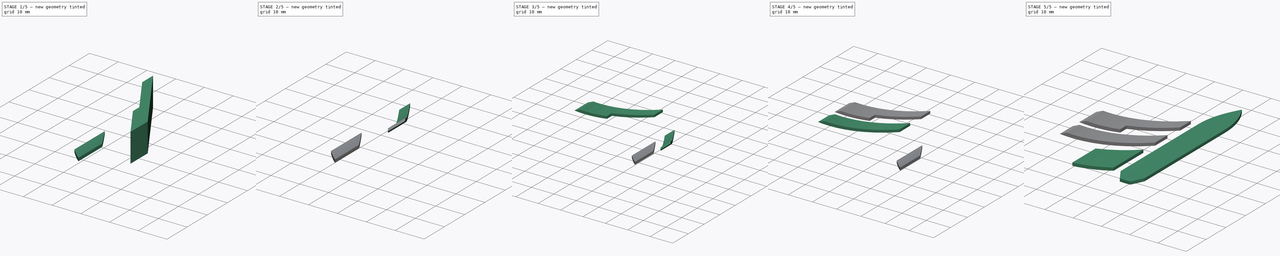
[diagram: build sequence overview — one tinted view per stage of 5, left to right]
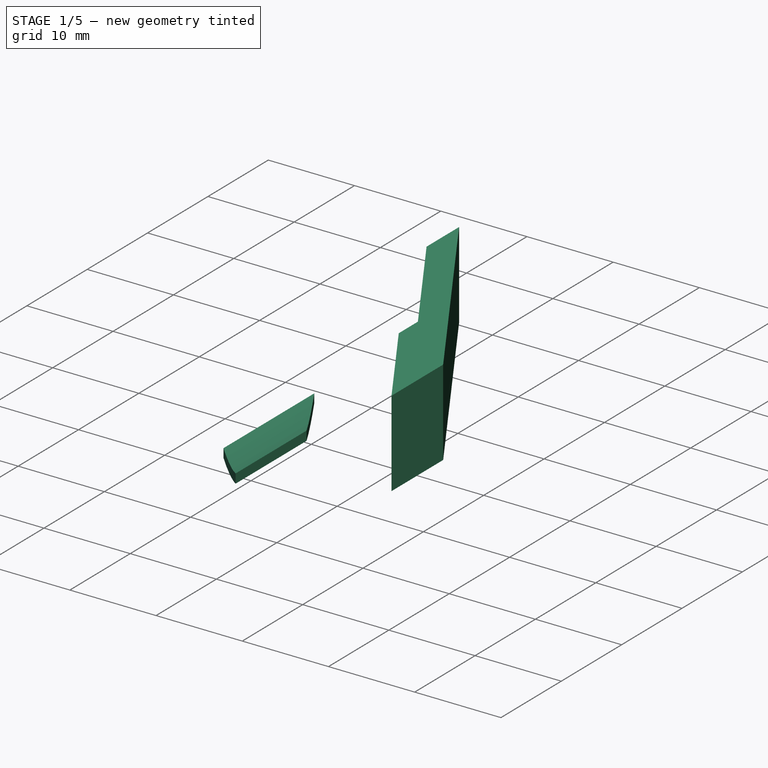
[diagram: stage 1 of 5 — iso view after this stage's code; geometry added in this stage tinted green]
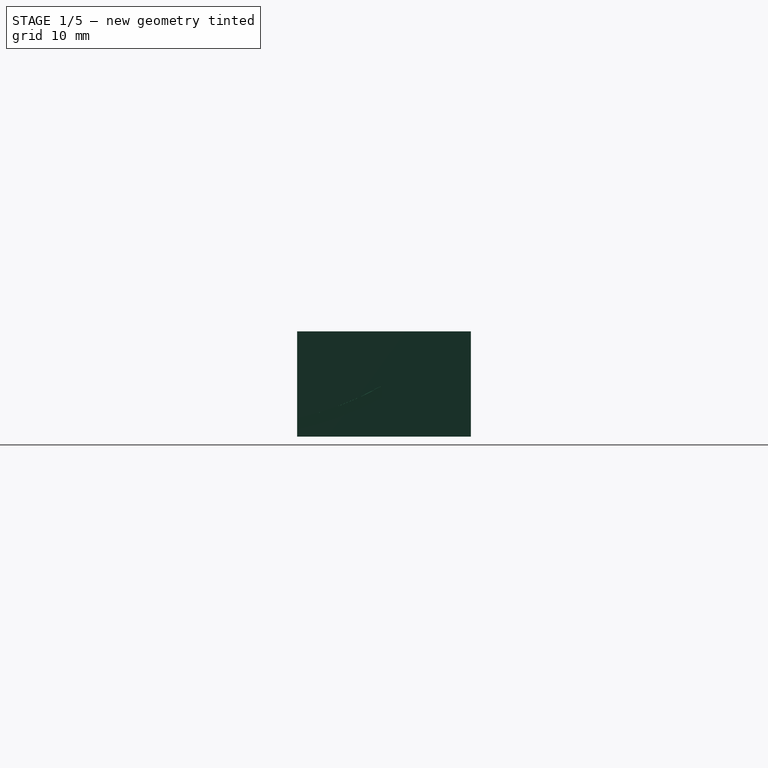
[diagram: stage 1 of 5 — front view after this stage's code; geometry added in this stage tinted green]
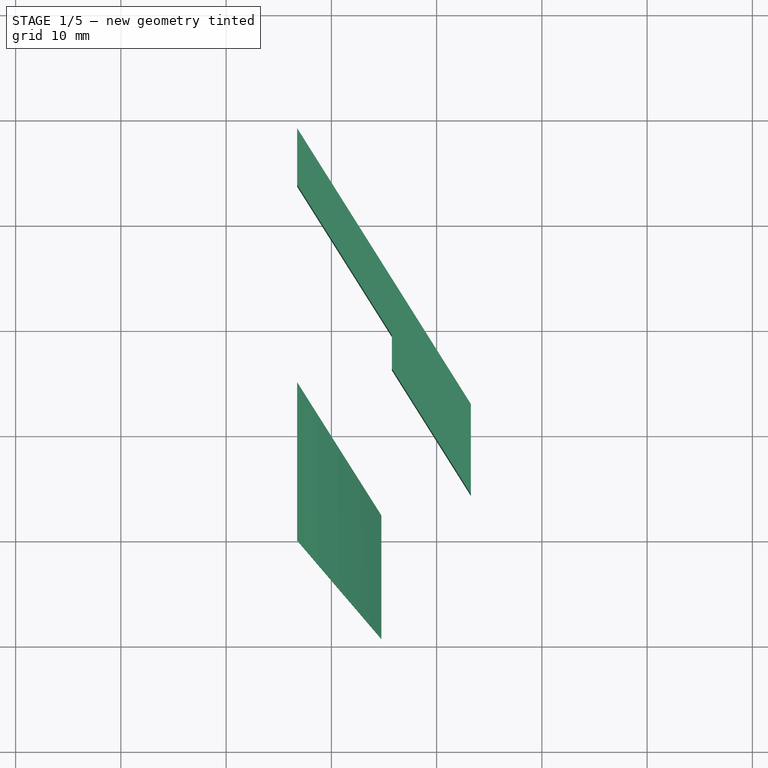
[diagram: stage 1 of 5 — top view after this stage's code; geometry added in this stage tinted green]
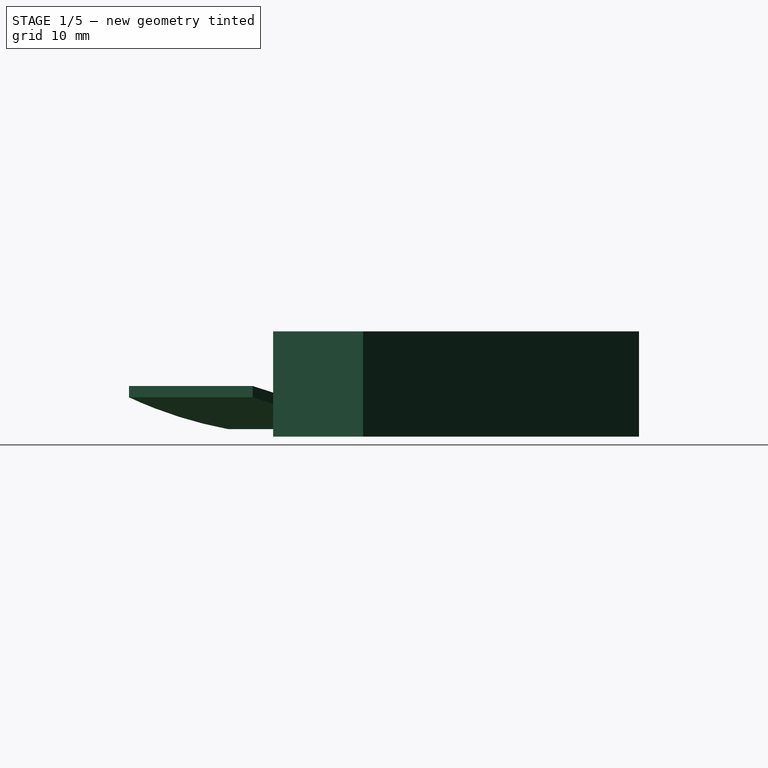
[diagram: stage 1 of 5 — right view after this stage's code; geometry added in this stage tinted green]
FCSTD DOCUMENT  (FreeCAD 1.0R39319 (Git))
Label: logo_red
License: All rights reserved
LicenseURL: https://en.wikipedia.org/wiki/All_rights_reserved
objects: Sketcher::SketchObject×13, PartDesign::Pocket×8, PartDesign::Body×7, PartDesign::Pad×4, PartDesign::Plane×4, PartDesign::FeatureBase×3, Part::Mirroring×3
note: 82 computed .brp shape members not serialized (recipe doc carries the construction recipe); baked Part::Feature solids carry a one-line shape summary decoded from their .brp

FEATURE [Sketcher::SketchObject] Sketch001
  ArcFitTolerance = 1e-06
  AttachmentSupport = -> [XY_Plane001]
  FullyConstrained = false
  MakeInternals = false
  MapMode = 5
  sketch-geometry (10):
    g0: LineSegment [constr] StartX=6.5 StartY=-4 StartZ=0 EndX=6.5 EndY=-20 EndZ=0
    g1: LineSegment [constr] StartX=6.5 StartY=-4 StartZ=0 EndX=15 EndY=-17.5 EndZ=0
    g2: LineSegment [constr] StartX=15 StartY=-17.5 StartZ=0 EndX=15 EndY=-30 EndZ=0
    g3: LineSegment [constr] StartX=6.5 StartY=-20 StartZ=0 EndX=15 EndY=-30 EndZ=0
    g4: LineSegment StartX=6.75 StartY=-19.9081 StartZ=0 EndX=6.75 EndY=-4.86627 EndZ=0
    g5: LineSegment StartX=6.75 StartY=-4.86627 StartZ=0 EndX=14.75 EndY=-17.5721 EndZ=0
    g6: LineSegment StartX=14.75 StartY=-17.5721 StartZ=0 EndX=14.75 EndY=-29.3199 EndZ=0
    g7: LineSegment StartX=14.75 StartY=-29.3199 StartZ=0 EndX=6.75 EndY=-19.9081 EndZ=0
    g8: LineSegment [constr] StartX=9.09899 StartY=-22.6716 StartZ=0 EndX=8.90851 EndY=-22.8335 EndZ=0
    g9: LineSegment [constr] StartX=8.97875 StartY=-8.40605 StartZ=0 EndX=9.19031 EndY=-8.27284 EndZ=0
  constraints (30):
    c: DistanceX(g-1,g0) = 6.5
    c: DistanceX(g0,g1) = 8.5
    c: DistanceY(g2,g1) = 12.5
    c: Distance(g0,g0) = 16
    c: DistanceY(g2,g0) = 10
    c: DistanceY(g0,g-1) = 20
    c: Vertical(g0)
    c: Coincident(g1,g0)
    c: Coincident(g2,g1)
    c: Vertical(g2)
    c: Coincident(g3,g0)
    c: Coincident(g3,g2)
    c: Coincident(g4,g5)
    c: Coincident(g5,g6)
    c: Coincident(g6,g7)
    c: Coincident(g7,g4)
    c: Parallel(g4,g0)
    c: Parallel(g5,g1)
    c: Parallel(g7,g3)
    c: Parallel(g6,g2)
    c: DistanceX(g0,g4) = 0.25
    c: DistanceX(g5,g1) = 0.25
    c: PointOnObject(g8,g7)
    c: PointOnObject(g8,g3)
    c: PointOnObject(g9,g5)
    c: PointOnObject(g9,g1)
    c: Perpendicular(g5,g9)
    c: Perpendicular(g3,g8)
    c: Distance(g8,g8) = 0.25
    c: Distance(g9,g9) = 0.25
FEATURE [PartDesign::Pad] Pad001
  Direction = (0,0,1)
  Length = 10
  Length2 = 10
  Profile = -> Sketch001
  ReferenceAxis = -> Sketch001 [N_Axis]
  Refine = true
  Suppressed = false
  Type = 0
FEATURE [Sketcher::SketchObject] Sketch003
  ArcFitTolerance = 1e-06
  AttachmentSupport = -> [XY_Plane003]
  FullyConstrained = false
  MakeInternals = false
  MapMode = 5
  sketch-geometry (16):
    g0: LineSegment [constr] StartX=23.5 StartY=-18.5 StartZ=0 EndX=6.5 EndY=8.5 EndZ=0
    g1: LineSegment [constr] StartX=6.5 StartY=19.995 StartZ=0 EndX=6.5 EndY=13.665 EndZ=0
    g2: LineSegment [constr] StartX=23.5 StartY=-7.005 StartZ=0 EndX=23.5 EndY=-16.5 EndZ=0
    g3: LineSegment [constr] StartX=15.5 StartY=-0.625 StartZ=0 EndX=15.5 EndY=-3.795 EndZ=0
    g4: LineSegment [constr] StartX=6.5 StartY=13.665 StartZ=0 EndX=15.5 EndY=-0.625 EndZ=0
    g5: LineSegment [constr] StartX=23.5 StartY=-16.5 StartZ=0 EndX=15.5 EndY=-3.795 EndZ=0
    g6: LineSegment [constr] StartX=6.5 StartY=19.995 StartZ=0 EndX=23.5 EndY=-7.005 EndZ=0
    g7: LineSegment StartX=6.75 StartY=19.1287 StartZ=0 EndX=6.75 EndY=13.7372 EndZ=0
    g8: LineSegment StartX=6.75 StartY=13.7372 StartZ=0 EndX=15.75 EndY=-0.552834 EndZ=0
    g9: LineSegment StartX=15.75 StartY=-0.552834 StartZ=0 EndX=15.75 EndY=-3.72285 EndZ=0
    g10: LineSegment StartX=15.75 StartY=-3.72285 StartZ=0 EndX=23.25 EndY=-15.6338 EndZ=0
    g11: LineSegment StartX=23.25 StartY=-15.6338 StartZ=0 EndX=23.25 EndY=-7.07715 EndZ=0
    g12: LineSegment StartX=23.25 StartY=-7.07715 StartZ=0 EndX=6.75 EndY=19.1287 EndZ=0
    g13: LineSegment [constr] StartX=12.3001 StartY=4.45566 StartZ=0 EndX=12.5117 EndY=4.58889 EndZ=0
    g14: LineSegment [constr] StartX=17.7024 StartY=1.73376 StartZ=0 EndX=17.914 EndY=1.86696 EndZ=0
    g15: LineSegment [constr] StartX=17.3224 StartY=-6.68913 StartZ=0 EndX=17.5339 EndY=-6.55592 EndZ=0
  constraints (49):
    c: DistanceY(g1,g1) = 6.33
    c: DistanceY(g2,g2) = 9.495
    c: DistanceX(g-1,g1) = 6.5
    c: DistanceX(g1,g2) = 17
    c: DistanceY(g0,g-1) = 18.5
    c: DistanceX(g-1,g0) = 6.5
    c: DistanceX(g-1,g0) = 23.5
    c: DistanceY(g-1,g0) = 8.5
    c: DistanceY(g0,g2) = 2
    c: DistanceX(g-1,g3) = 15.5
    c: Vertical(g1)
    c: Vertical(g2)
    c: Vertical(g3)
    c: Coincident(g4,g1)
    c: Coincident(g4,g3)
    c: Coincident(g5,g2)
    c: Coincident(g5,g3)
    c: Coincident(g6,g1)
    c: Coincident(g6,g2)
    c: DistanceY(g3,g3) = 3.17
    c: DistanceY(g3,g1) = 14.29
    c: DistanceY(g2,g1) = 27
    c: Coincident(g7,g8)
    c: Coincident(g8,g9)
    c: Vertical(g9)
    c: Coincident(g9,g10)
    c: Coincident(g10,g11)
    c: Vertical(g11)
    c: Coincident(g11,g12)
    c: Coincident(g12,g7)
    c: Parallel(g12,g6)
    c: Parallel(g8,g4)
    c: Parallel(g7,g1)
    c: Parallel(g10,g5)
    c: DistanceX(g1,g7) = 0.25
    c: DistanceX(g10,g2) = 0.25
    c: DistanceX(g3,g9) = 0.25
    c: PointOnObject(g13,g4)
    c: PointOnObject(g13,g8)
    c: PointOnObject(g14,g12)
    c: PointOnObject(g14,g6)
    c: PointOnObject(g15,g5)
    c: PointOnObject(g15,g10)
    c: Perpendicular(g10,g15)
    c: Perpendicular(g6,g14)
    c: Perpendicular(g4,g13)
    c: Distance(g13,g13) = 0.25
    c: Distance(g14,g14) = 0.25
    c: Distance(g15,g15) = 0.25
FEATURE [PartDesign::Pad] Pad003
  Direction = (0,0,1)
  Length = 10
  Length2 = 10
  Profile = -> Sketch003
  ReferenceAxis = -> Sketch003 [N_Axis]
  Refine = true
  Suppressed = false
  Type = 0
FEATURE [PartDesign::Plane] DatumPlane004
  AttachmentSupport = -> [Sketch001]
  Length = 60
  MapMode = 7
  Placement = pos=(6.75,-4.86627,0) rot=(1,0,0;1.5708rad)
  ResizeMode = 0
  Width = 60
FEATURE [Sketcher::SketchObject] Sketch013
  ArcFitTolerance = 1e-06
  AttachmentSupport = -> [DatumPlane004]
  FullyConstrained = false
  MakeInternals = false
  MapMode = 5
  Placement = pos=(6.75,-4.86627,0) rot=(1,0,0;1.5708rad)
  sketch-geometry (2):
    g0: Circle CenterX=-6.5 CenterY=30 CenterZ=0 NormalX=0 NormalY=0 NormalZ=1 AngleXU=0 Radius=30
    g1: Circle CenterX=-6.5 CenterY=30 CenterZ=0 NormalX=0 NormalY=0 NormalZ=1 AngleXU=0 Radius=50.9745
  constraints (4):
    c: Diameter(g0) = 60
    c: Coincident(g1,g0)
    c: Distance(g0,g-2) = 6.5
    c: Tangent(g0,g-1)
FEATURE [PartDesign::Pocket] Pocket008
  BaseFeature = -> Pad001
  Direction = (0,1,-2e-16)
  Length = 5
  Length2 = 5
  Profile = -> Sketch013
  ReferenceAxis = -> Sketch013 [N_Axis]
  Refine = true
  Reversed = true
  Suppressed = false
  Type = 1
FEATURE [Sketcher::SketchObject] Sketch014
  ArcFitTolerance = 1e-06
  AttachmentSupport = -> [DatumPlane004]
  FullyConstrained = true
  MakeInternals = false
  MapMode = 5
  Placement = pos=(6.75,-4.86627,0) rot=(1,0,0;1.5708rad)
  sketch-geometry (2):
    g0: Circle CenterX=-6.5 CenterY=30.5 CenterZ=0 NormalX=0 NormalY=0 NormalZ=1 AngleXU=0 Radius=29.5
    g1: LineSegment [constr] StartX=-6.5 StartY=30.5 StartZ=0 EndX=-6.5 EndY=1 EndZ=0
  constraints (6):
    c: Diameter(g0) = 59
    c: Coincident(g1,g0)
    c: PointOnObject(g1,g0)
    c: Vertical(g1)
    c: DistanceX(g0,g-1) = 6.5
    c: Distance(g1,g-1) = 1
FEATURE [PartDesign::Pocket] Pocket009
  BaseFeature = -> Pocket008
  Direction = (0,1,-2e-16)
  Length = 5
  Length2 = 5
  Profile = -> Sketch014
  ReferenceAxis = -> Sketch014 [N_Axis]
  Refine = true
  Reversed = true
  Suppressed = false
  Type = 1
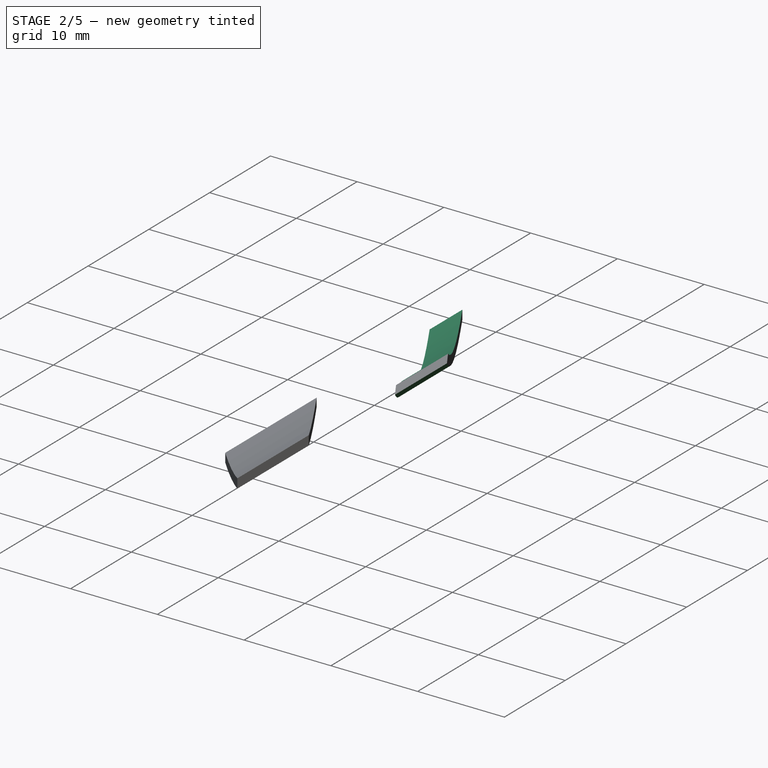
[diagram: stage 2 of 5 — iso view after this stage's code; geometry added in this stage tinted green]
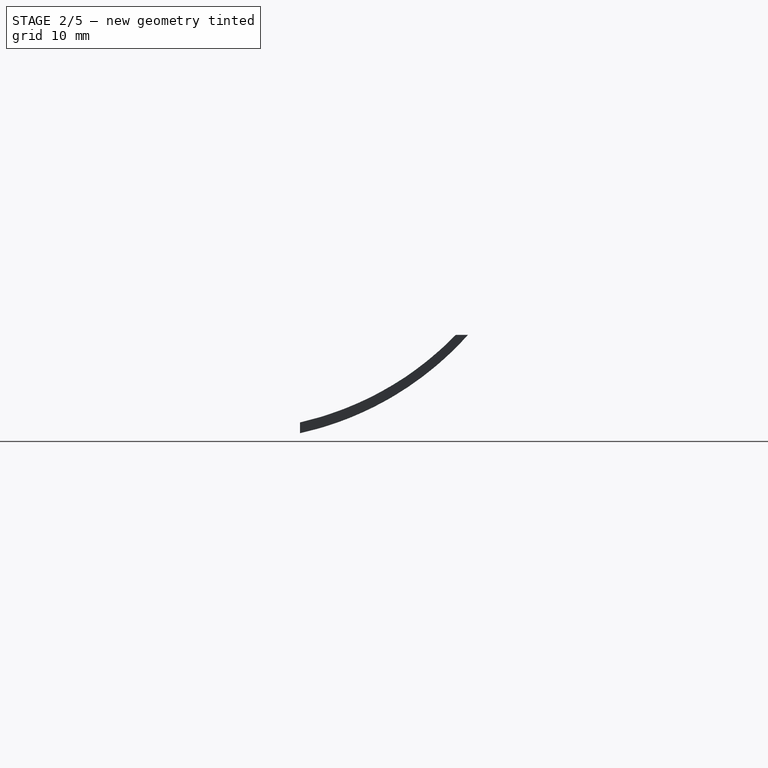
[diagram: stage 2 of 5 — front view after this stage's code; geometry added in this stage tinted green]
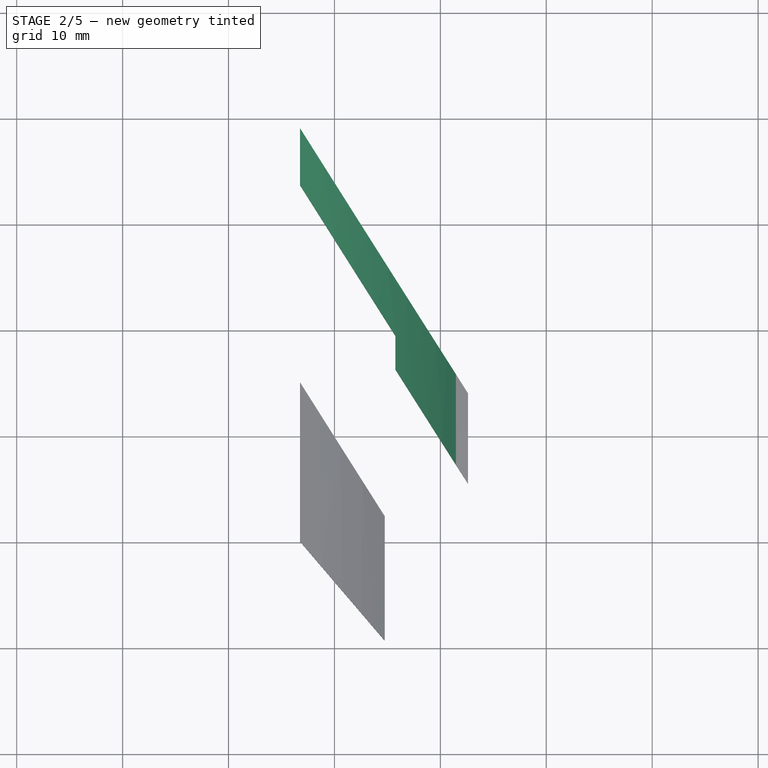
[diagram: stage 2 of 5 — top view after this stage's code; geometry added in this stage tinted green]
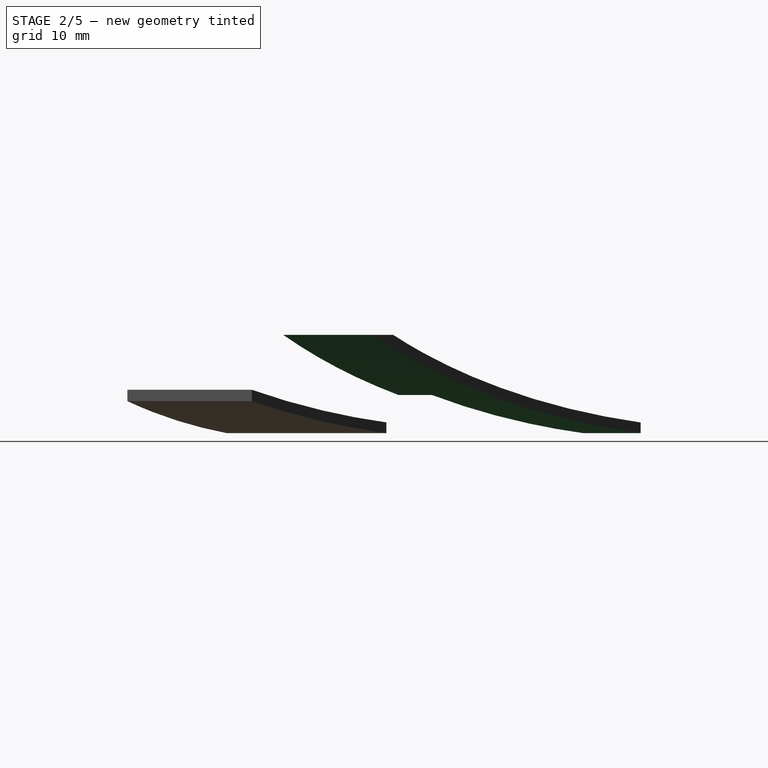
[diagram: stage 2 of 5 — right view after this stage's code; geometry added in this stage tinted green]
FEATURE [Sketcher::SketchObject] Sketch011
  ArcFitTolerance = 1e-06
  AttachmentSupport = -> [DatumPlane003]
  FullyConstrained = false
  MakeInternals = false
  MapMode = 5
  Placement = pos=(6.75,19.1287,0) rot=(0,0.707107,0.707107;3.14159rad)
  sketch-geometry (2):
    g0: Circle CenterX=6.5 CenterY=30 CenterZ=0 NormalX=0 NormalY=0 NormalZ=1 AngleXU=0 Radius=30
    g1: Circle CenterX=6.5 CenterY=30 CenterZ=0 NormalX=0 NormalY=0 NormalZ=1 AngleXU=0 Radius=42.6483
  constraints (4):
    c: Diameter(g0) = 60
    c: Distance(g0,g-2) = 6.5
    c: Tangent(g0,g-1)
    c: Coincident(g1,g0)
FEATURE [PartDesign::Pocket] Pocket006
  BaseFeature = -> Pad003
  Direction = (0,-1,2e-16)
  Length = 5
  Length2 = 5
  Profile = -> Sketch011
  ReferenceAxis = -> Sketch011 [N_Axis]
  Refine = true
  Suppressed = false
  Type = 1
FEATURE [Sketcher::SketchObject] Sketch012
  ArcFitTolerance = 1e-06
  AttachmentSupport = -> [DatumPlane003]
  FullyConstrained = true
  MakeInternals = false
  MapMode = 5
  Placement = pos=(6.75,19.1287,0) rot=(0,0.707107,0.707107;3.14159rad)
  sketch-geometry (2):
    g0: Circle CenterX=6.5 CenterY=30.5 CenterZ=0 NormalX=0 NormalY=0 NormalZ=1 AngleXU=0 Radius=29.5
    g1: LineSegment [constr] StartX=6.5 StartY=30.5 StartZ=0 EndX=6.5 EndY=1 EndZ=0
  constraints (6):
    c: Diameter(g0) = 59
    c: Distance(g0,g-2) = 6.5
    c: Coincident(g1,g0)
    c: PointOnObject(g1,g0)
    c: Vertical(g1)
    c: DistanceY(g-1,g1) = 1
FEATURE [PartDesign::Pocket] Pocket007
  BaseFeature = -> Pocket006
  Direction = (0,-1,2e-16)
  Length = 5
  Length2 = 5
  Profile = -> Sketch012
  ReferenceAxis = -> Sketch012 [N_Axis]
  Refine = true
  Suppressed = false
  Type = 1
FEATURE [PartDesign::Body] Body003  label="upper_right_wing"
  AllowCompound = false
  Group = -> [Sketch003,Pad003,DatumPlane003,Sketch011,Pocket006,Sketch012,Pocket007]
  Origin = -> Origin003
  Tip = -> Pocket007
FEATURE [PartDesign::FeatureBase] Clone002
  BaseFeature = -> Body003
  Suppressed = false
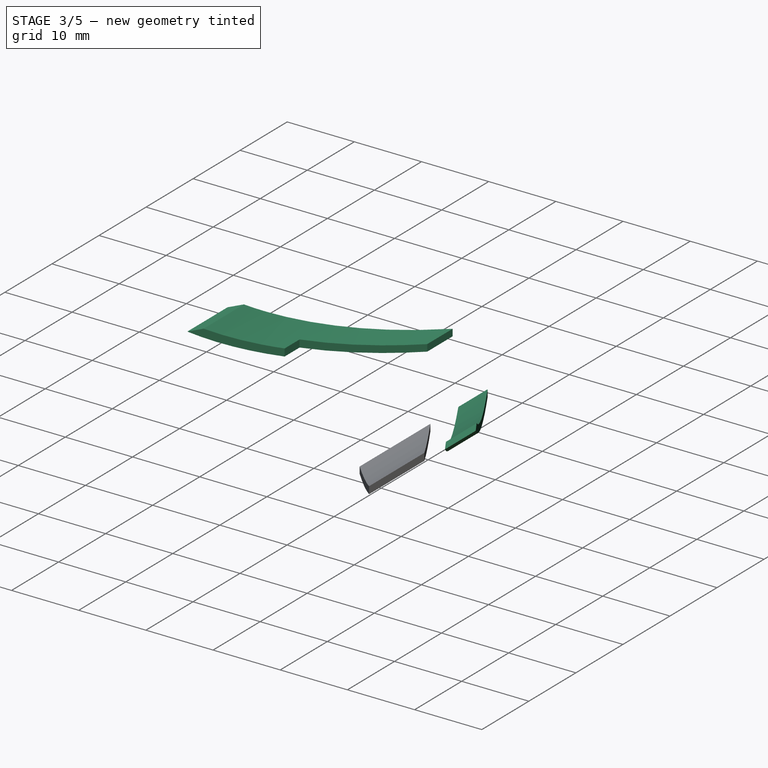
[diagram: stage 3 of 5 — iso view after this stage's code; geometry added in this stage tinted green]
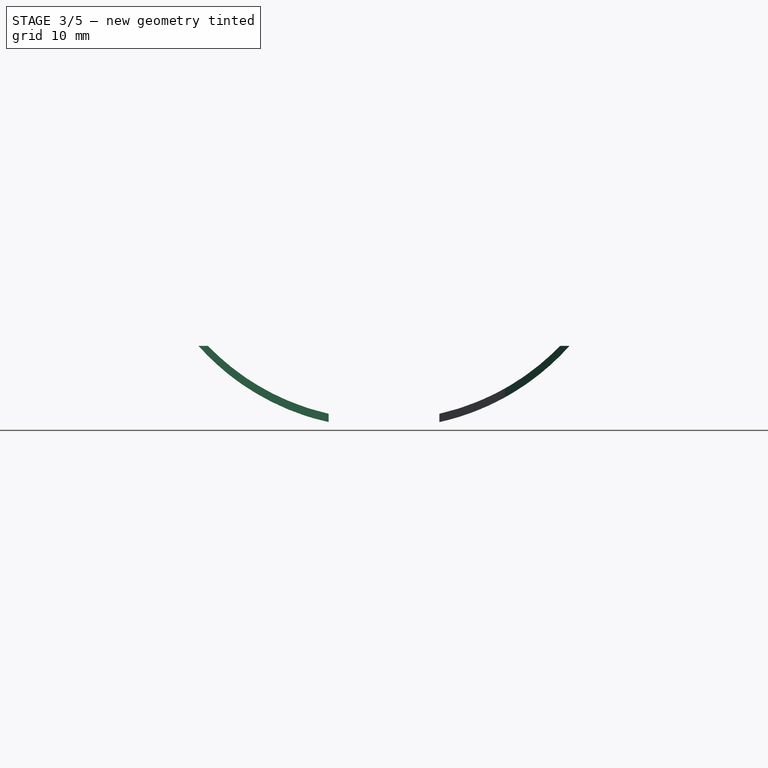
[diagram: stage 3 of 5 — front view after this stage's code; geometry added in this stage tinted green]
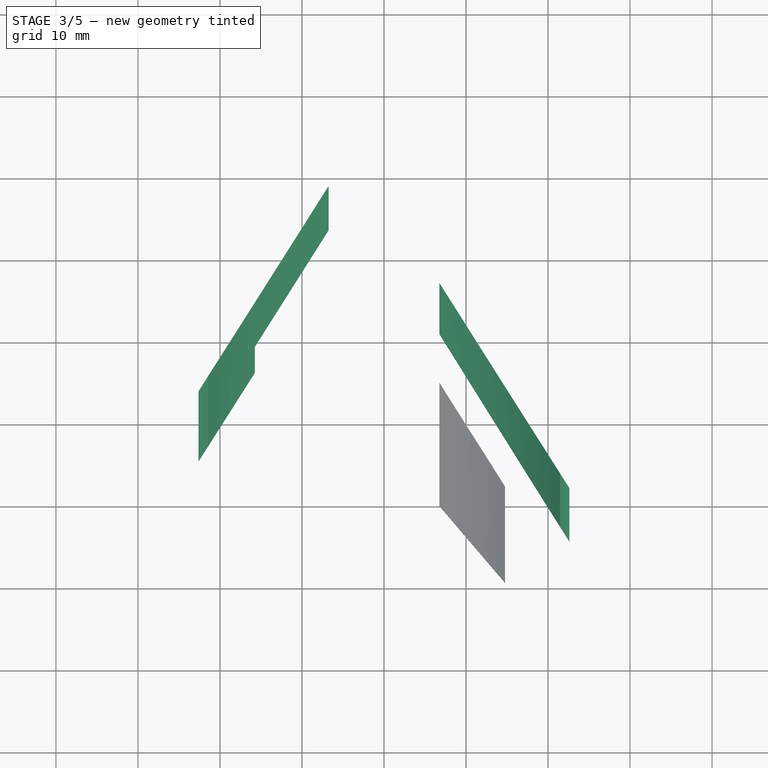
[diagram: stage 3 of 5 — top view after this stage's code; geometry added in this stage tinted green]
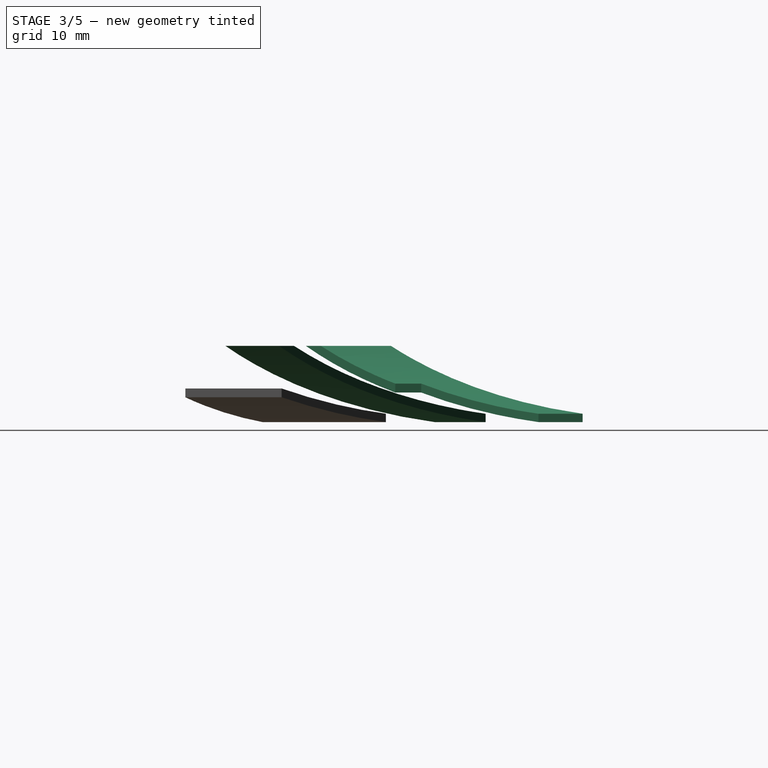
[diagram: stage 3 of 5 — right view after this stage's code; geometry added in this stage tinted green]
FEATURE [Sketcher::SketchObject] Sketch002
  ArcFitTolerance = 1e-06
  AttachmentSupport = -> [XY_Plane002]
  FullyConstrained = false
  MakeInternals = false
  MapMode = 5
  sketch-geometry (10):
    g0: LineSegment [constr] StartX=6.5 StartY=8.16745 StartZ=0 EndX=6.5 EndY=1 EndZ=0
    g1: LineSegment [constr] StartX=23.5 StartY=-18.8326 StartZ=0 EndX=23.5 EndY=-26.3326 EndZ=0
    g2: LineSegment [constr] StartX=6.5 StartY=8.16745 StartZ=0 EndX=23.5 EndY=-18.8326 EndZ=0
    g3: LineSegment [constr] StartX=23.5 StartY=-26.3326 StartZ=0 EndX=6.5 EndY=1 EndZ=0
    g4: LineSegment StartX=6.75 StartY=7.30118 StartZ=0 EndX=23.25 EndY=-18.9047 EndZ=0
    g5: LineSegment StartX=23.25 StartY=-18.9047 StartZ=0 EndX=23.25 EndY=-25.4572 EndZ=0
    g6: LineSegment StartX=23.25 StartY=-25.4572 StartZ=0 EndX=6.75 EndY=1.0714 EndZ=0
    g7: LineSegment StartX=6.75 StartY=1.0714 StartZ=0 EndX=6.75 EndY=7.30118 EndZ=0
    g8: LineSegment [constr] StartX=15 StartY=-5.80176 StartZ=0 EndX=15.2116 EndY=-5.66856 EndZ=0
    g9: LineSegment [constr] StartX=12.6149 StartY=-8.83147 StartZ=0 EndX=12.8272 EndY=-8.69943 EndZ=0
  constraints (29):
    c: DistanceX(g0,g1) = 17
    c: DistanceY(g1,g1) = 7.5
    c: DistanceX(g-1,g0) = 6.5
    c: DistanceY(g-1,g0) = 1
    c: DistanceY(g1,g0) = 34.5
    c: Vertical(g0)
    c: Vertical(g1)
    c: Coincident(g2,g0)
    c: Coincident(g2,g1)
    c: Coincident(g3,g1)
    c: Coincident(g3,g0)
    c: Coincident(g4,g5)
    c: Coincident(g5,g6)
    c: Coincident(g6,g7)
    c: Coincident(g7,g4)
    c: Parallel(g7,g0)
    c: Parallel(g4,g2)
    c: Parallel(g6,g3)
    c: Parallel(g5,g1)
    c: Symmetric(g4,g4,g8)
    c: PointOnObject(g8,g2)
    c: PointOnObject(g9,g3)
    c: PointOnObject(g9,g6)
    c: Perpendicular(g3,g9)
    c: Perpendicular(g4,g8)
    c: DistanceX(g0,g6) = 0.25
    c: DistanceX(g5,g1) = 0.25
    c: Distance(g9,g9) = 0.25
    c: Distance(g8,g8) = 0.25
FEATURE [PartDesign::Pad] Pad002
  Direction = (0,0,1)
  Length = 10
  Length2 = 10
  Profile = -> Sketch002
  ReferenceAxis = -> Sketch002 [N_Axis]
  Refine = true
  Suppressed = false
  Type = 0
FEATURE [PartDesign::Body] Body  label="main_body"
  AllowCompound = false
  Group = -> [Sketch,Pad,Sketch004,DatumPlane,Sketch005,Pocket,Sketch006,Pocket001]
  Origin = -> Origin
  Tip = -> Pocket001
FEATURE [PartDesign::Plane] DatumPlane002
  AttachmentSupport = -> [Pad002]
  Length = 60
  MapMode = 7
  Placement = pos=(6.75,7.30118,0) rot=(1,0,0;1.5708rad)
  ResizeMode = 0
  Width = 60
FEATURE [Sketcher::SketchObject] Sketch009
  ArcFitTolerance = 1e-06
  AttachmentSupport = -> [DatumPlane002]
  FullyConstrained = false
  MakeInternals = false
  MapMode = 5
  Placement = pos=(6.75,7.30118,0) rot=(1,0,0;1.5708rad)
  sketch-geometry (2):
    g0: Circle CenterX=-6.5 CenterY=30 CenterZ=0 NormalX=0 NormalY=0 NormalZ=1 AngleXU=0 Radius=30
    g1: Circle CenterX=-6.5 CenterY=30 CenterZ=0 NormalX=0 NormalY=0 NormalZ=1 AngleXU=0 Radius=40.2472
  constraints (4):
    c: Diameter(g0) = 60
    c: Tangent(g0,g-1)
    c: DistanceX(g0,g-1) = 6.5
    c: Coincident(g1,g0)
FEATURE [PartDesign::Pocket] Pocket004
  BaseFeature = -> Pad002
  Direction = (0,1,-2e-16)
  Length = 5
  Length2 = 5
  Profile = -> Sketch009
  ReferenceAxis = -> Sketch009 [N_Axis]
  Refine = true
  Reversed = true
  Suppressed = false
  Type = 1
FEATURE [Sketcher::SketchObject] Sketch010
  ArcFitTolerance = 1e-06
  AttachmentSupport = -> [DatumPlane002]
  FullyConstrained = true
  MakeInternals = false
  MapMode = 5
  Placement = pos=(6.75,7.30118,0) rot=(1,0,0;1.5708rad)
  sketch-geometry (2):
    g0: Circle CenterX=-6.5 CenterY=30.5 CenterZ=0 NormalX=0 NormalY=0 NormalZ=1 AngleXU=0 Radius=29.5
    g1: LineSegment [constr] StartX=-6.5 StartY=30.5 StartZ=0 EndX=-6.5 EndY=1 EndZ=0
  constraints (6):
    c: Diameter(g0) = 59
    c: DistanceX(g0,g-1) = 6.5
    c: Coincident(g1,g0)
    c: PointOnObject(g1,g0)
    c: Vertical(g1)
    c: DistanceY(g-1,g1) = 1
FEATURE [PartDesign::Pocket] Pocket005
  BaseFeature = -> Pocket004
  Direction = (0,1,-2e-16)
  Length = 5
  Length2 = 5
  Profile = -> Sketch010
  ReferenceAxis = -> Sketch010 [N_Axis]
  Refine = true
  Reversed = true
  Suppressed = false
  Type = 1
FEATURE [PartDesign::Body] Body006
  AllowCompound = false
  Group = -> [Clone002]
  Origin = -> Origin006
  Tip = -> Clone002
FEATURE [Part::Mirroring] Part__Mirroring002  label="upper_left_wing"
  Base = (0,0,0)
  Normal = (1,0,0)
  Source = -> Body006
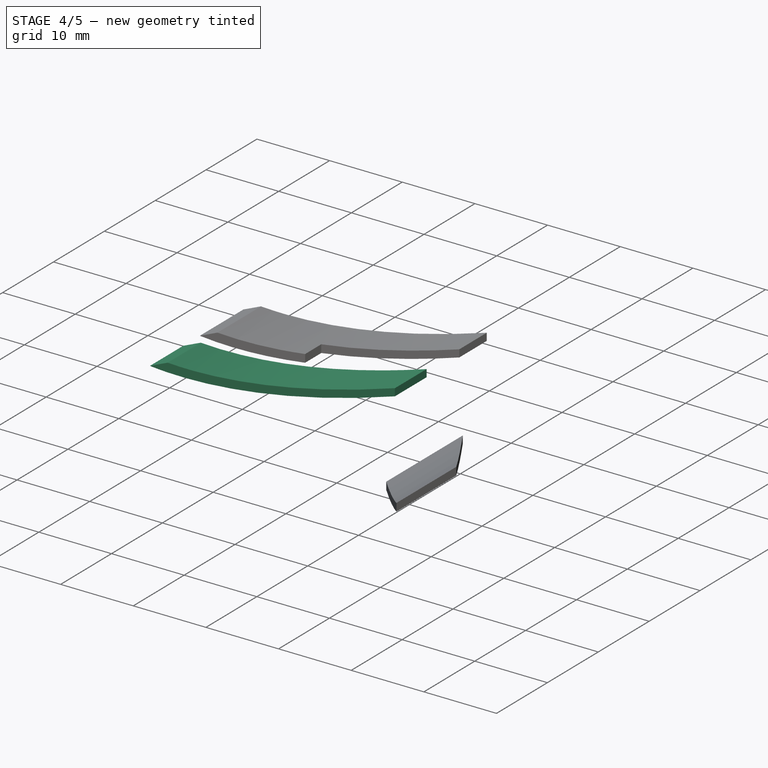
[diagram: stage 4 of 5 — iso view after this stage's code; geometry added in this stage tinted green]
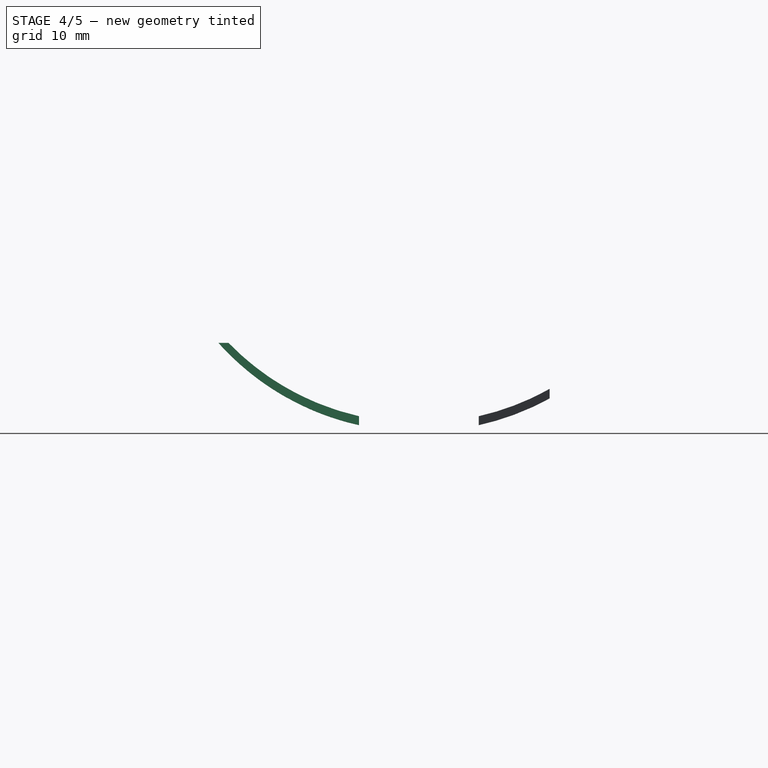
[diagram: stage 4 of 5 — front view after this stage's code; geometry added in this stage tinted green]
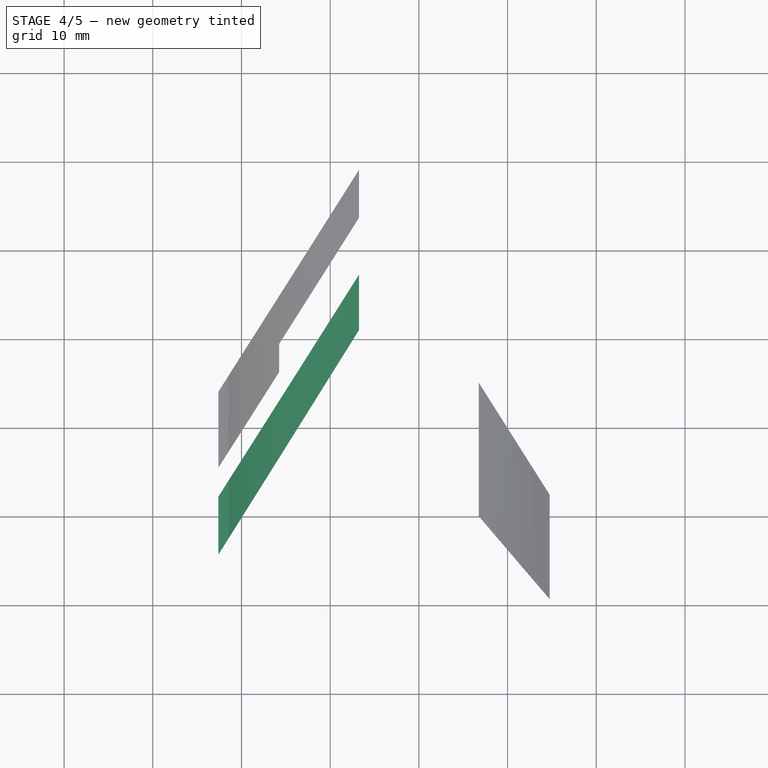
[diagram: stage 4 of 5 — top view after this stage's code; geometry added in this stage tinted green]
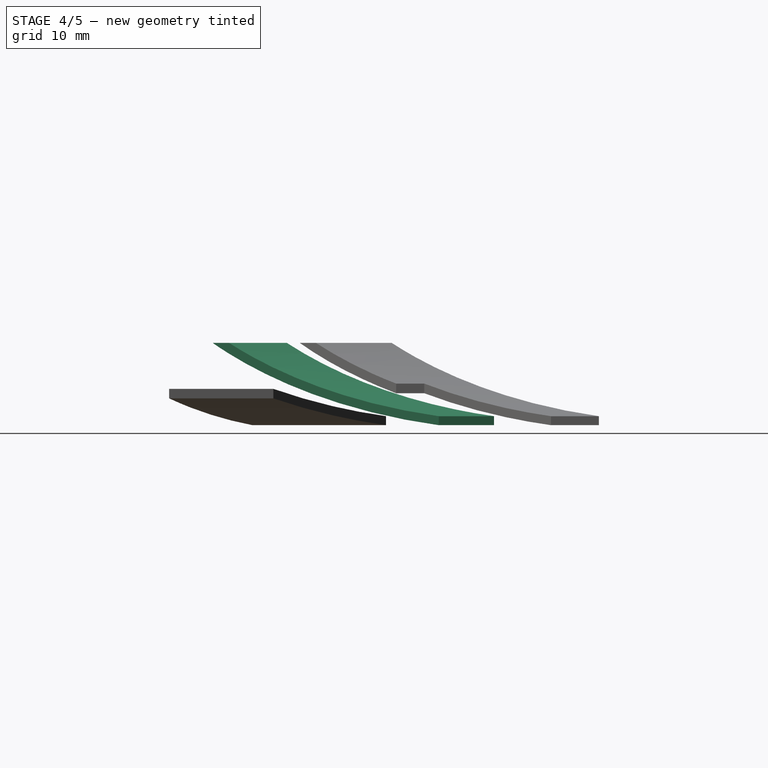
[diagram: stage 4 of 5 — right view after this stage's code; geometry added in this stage tinted green]
FEATURE [PartDesign::Body] Body002  label="mid_right_wing"
  AllowCompound = false
  Group = -> [Sketch002,Pad002,DatumPlane002,Sketch009,Pocket004,Sketch010,Pocket005]
  Origin = -> Origin002
  Tip = -> Pocket005
FEATURE [PartDesign::Plane] DatumPlane003
  AttachmentSupport = -> [Pad003]
  Length = 60
  MapMode = 7
  Placement = pos=(6.75,19.1287,0) rot=(0,0.707107,0.707107;3.14159rad)
  ResizeMode = 0
  Width = 60
FEATURE [PartDesign::FeatureBase] Clone001
  BaseFeature = -> Body002
  Suppressed = false
FEATURE [PartDesign::Body] Body005
  AllowCompound = false
  Group = -> [Clone001]
  Origin = -> Origin005
  Tip = -> Clone001
FEATURE [Part::Mirroring] Part__Mirroring001  label="mid_left_wing"
  Base = (0,0,0)
  Normal = (1,0,0)
  Source = -> Body005
FEATURE [PartDesign::Body] Body001  label="lower_right_wing"
  AllowCompound = false
  Group = -> [Sketch001,Pad001,DatumPlane004,Sketch013,Pocket008,Sketch014,Pocket009]
  Origin = -> Origin001
  Tip = -> Pocket009
FEATURE [PartDesign::FeatureBase] Clone
  BaseFeature = -> Body001
  Suppressed = false
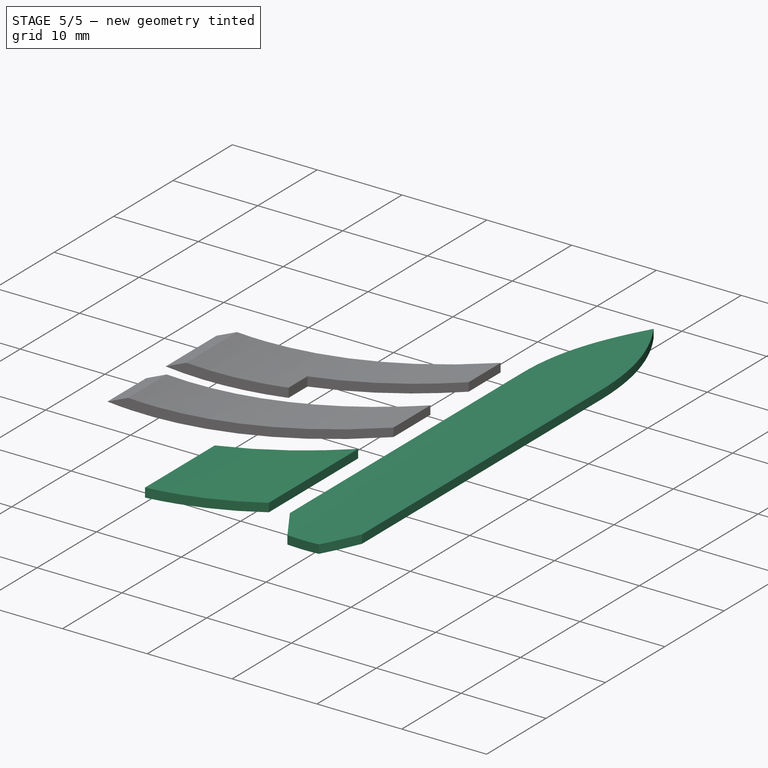
[diagram: stage 5 of 5 — iso view after this stage's code; geometry added in this stage tinted green]
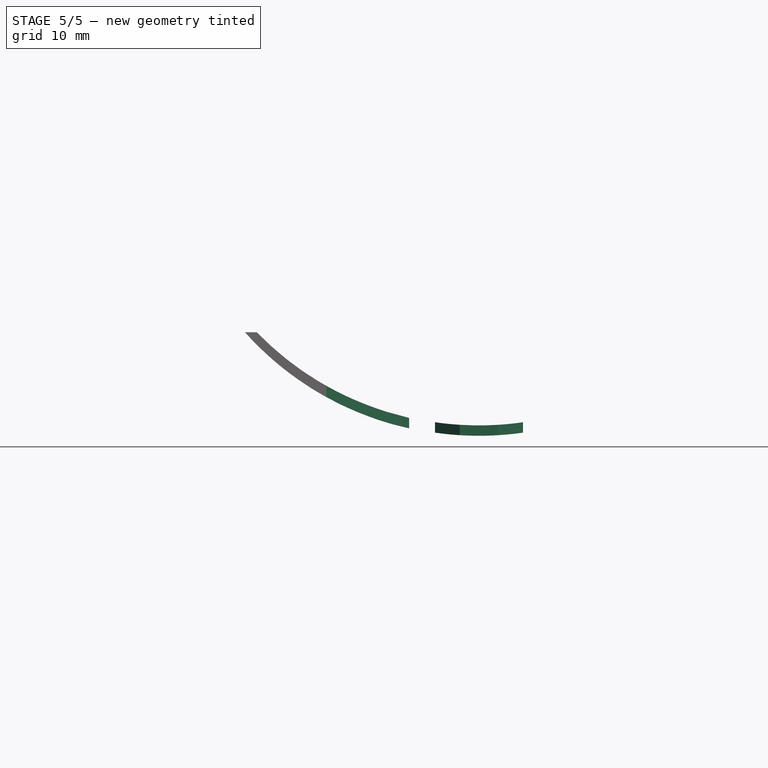
[diagram: stage 5 of 5 — front view after this stage's code; geometry added in this stage tinted green]
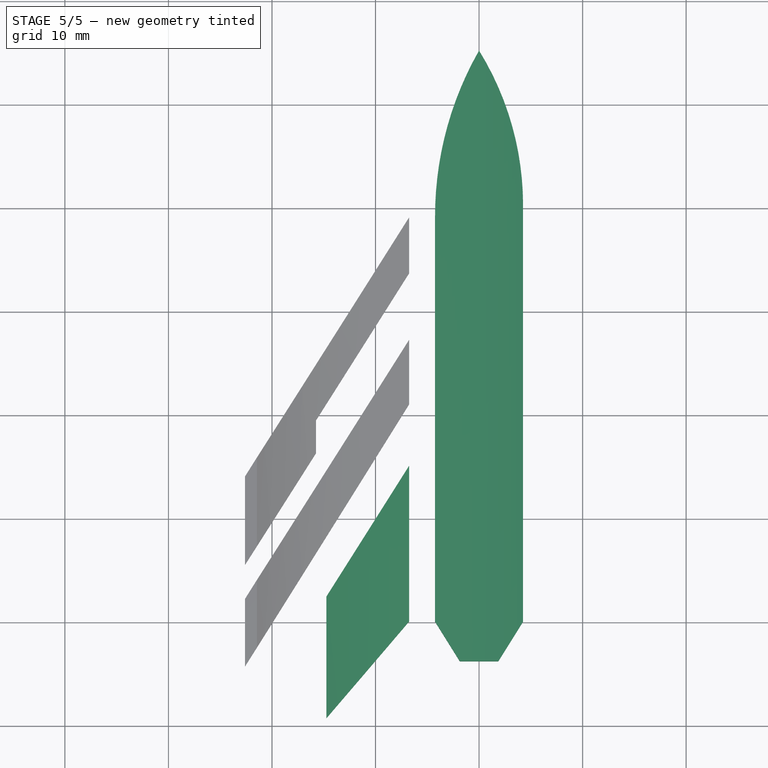
[diagram: stage 5 of 5 — top view after this stage's code; geometry added in this stage tinted green]
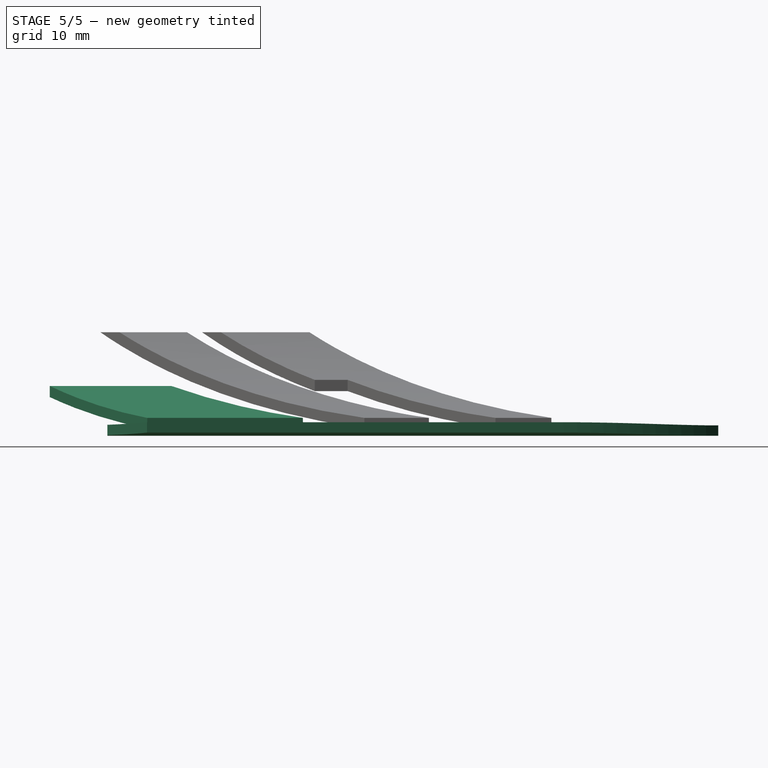
[diagram: stage 5 of 5 — right view after this stage's code; geometry added in this stage tinted green]
FEATURE [Sketcher::SketchObject] Sketch
  ArcFitTolerance = 1e-06
  AttachmentSupport = -> [XY_Plane]
  FullyConstrained = false
  MakeInternals = false
  MapMode = 5
  sketch-geometry (23):
    g0: LineSegment [constr] StartX=-4.5 StartY=20 StartZ=0 EndX=4.5 EndY=-20 EndZ=0
    g1: LineSegment [constr] StartX=4.5 StartY=20 StartZ=0 EndX=-4.5 EndY=-20 EndZ=0
    g2: GeomPoint [constr] X=0 Y=0 Z=0
    g3: LineSegment [constr] StartX=-4.5 StartY=-20 StartZ=0 EndX=-4.5 EndY=20 EndZ=0
    g4: LineSegment [constr] StartX=4.5 StartY=20 StartZ=0 EndX=4.5 EndY=-20 EndZ=0
    g5: LineSegment [constr] StartX=-4.5 StartY=-20 StartZ=0 EndX=-2 EndY=-24 EndZ=0
    g6: LineSegment [constr] StartX=2 StartY=-24 StartZ=0 EndX=4.5 EndY=-20 EndZ=0
    g7: LineSegment [constr] StartX=-2 StartY=-24 StartZ=0 EndX=2 EndY=-24 EndZ=0
    g8: GeomPoint [constr] X=3.6e-15 Y=36 Z=0
    g9: ArcOfCircle [constr] CenterX=-26.1944 CenterY=20 CenterZ=0 NormalX=0 NormalY=0 NormalZ=1 AngleXU=0 Radius=30.6944 StartAngle=6.28319 EndAngle=6.83152
    g10: ArcOfCircle [constr] CenterX=26.1944 CenterY=20 CenterZ=0 NormalX=0 NormalY=0 NormalZ=1 AngleXU=0 Radius=30.6944 StartAngle=2.59326 EndAngle=3.14159
    g11: LineSegment StartX=-4.25 StartY=19.2207 StartZ=0 EndX=-4.25 EndY=-19.9283 EndZ=0
    g12: LineSegment StartX=-4.25 StartY=-19.9283 StartZ=0 EndX=-1.86144 EndY=-23.75 EndZ=0
    g13: LineSegment StartX=-1.86144 StartY=-23.75 StartZ=0 EndX=1.86144 EndY=-23.75 EndZ=0
    g14: LineSegment StartX=1.86144 StartY=-23.75 StartZ=0 EndX=4.25 EndY=-19.9283 EndZ=0
    g15: LineSegment StartX=4.25 StartY=-19.9283 StartZ=0 EndX=4.25 EndY=20.2751 EndZ=0
    g16: LineSegment [constr] StartX=-2.67936 StartY=-22.913 StartZ=0 EndX=-2.46737 EndY=-22.7805 EndZ=0
    g17: LineSegment [constr] StartX=0.534111 StartY=-25.8737 StartZ=0 EndX=0.746111 EndY=-26.0062 EndZ=0
    g18: GeomPoint X=0 Y=35.2461 Z=0
    g19: ArcOfCircle CenterX=28.0883 CenterY=19.2207 CenterZ=0 NormalX=0 NormalY=0 NormalZ=1 AngleXU=0 Radius=32.3383 StartAngle=2.62312 EndAngle=3.14159
    g20: LineSegment [constr] StartX=-1.81723 StartY=31.5262 StartZ=0 EndX=-2.1909 EndY=31.6799 EndZ=0
    g21: ArcOfCircle CenterX=-24.2432 CenterY=20.2751 CenterZ=0 NormalX=0 NormalY=0 NormalZ=1 AngleXU=0 Radius=28.4932 StartAngle=0 EndAngle=0.553211
    g22: LineSegment [constr] StartX=3.97088 StartY=24.2536 StartZ=0 EndX=4.19932 EndY=24.2858 EndZ=0
  constraints (58):
    c: DistanceX(g0,g1) = 9
    c: DistanceY(g4,g1) = 40
    c: PointOnObject(g2,g0)
    c: Coincident(g2,g-1)
    c: Symmetric(g1,g0,g-2)
    c: DistanceY(g5,g1) = 4
    c: Symmetric(g5,g6,g-2)
    c: DistanceX(g5,g6) = 4
    c: Symmetric(g4,g1,g-2)
    c: Coincident(g3,g0)
    c: Vertical(g3)
    c: Coincident(g4,g1)
    c: Vertical(g4)
    c: Coincident(g5,g1)
    c: Coincident(g6,g0)
    c: Coincident(g7,g5)
    c: Coincident(g7,g6)
    c: PointOnObject(g8,g-2)
    c: DistanceY(g1,g8) = 16
    c: Coincident(g9,g1)
    c: Coincident(g9,g8)
    c: Coincident(g10,g0)
    c: Coincident(g10,g8)
    c: Tangent(g9,g4)
    c: Vertical(g11)
    c: Coincident(g11,g12)
    c: Coincident(g12,g13)
    c: Horizontal(g13)
    c: Coincident(g13,g14)
    c: Coincident(g14,g15)
    c: Vertical(g15)
    c: DistanceX(g15,g1) = 0.25
    c: DistanceY(g5,g12) = 0.25
    c: Parallel(g14,g6)
    c: Parallel(g12,g5)
    c: PointOnObject(g16,g5)
    c: PointOnObject(g16,g12)
    c: Perpendicular(g16,g12)
    c: Distance(g16,g16) = 0.25
    c: PointOnObject(g17,g14)
    c: PointOnObject(g17,g6)
    c: Perpendicular(g6,g17)
    c: Distance(g17,g6) = 0.25
    c: PointOnObject(g18,g-2)
    c: Coincident(g19,g18)
    c: DistanceX(g0,g11) = 0.25
    c: PointOnObject(g20,g19)
    c: PointOnObject(g20,g10)
    c: Perpendicular(g19,g20)
    c: Perpendicular(g10,g20)
    c: Tangent(g19,g11) = -1.5708
    c: Coincident(g21,g18)
    c: Tangent(g21,g15) = -1.5708
    c: Coincident(g0,g4)
    c: PointOnObject(g22,g21)
    c: PointOnObject(g22,g9)
    c: Perpendicular(g9,g22)
    c: Perpendicular(g21,g22)
FEATURE [PartDesign::Pad] Pad
  Direction = (0,0,1)
  Length = 10
  Length2 = 10
  Profile = -> Sketch
  ReferenceAxis = -> Sketch [N_Axis]
  Refine = true
  Suppressed = false
  Type = 0
FEATURE [Sketcher::SketchObject] Sketch004
  ArcFitTolerance = 1e-06
  AttachmentSupport = -> [Pad]
  FullyConstrained = true
  MakeInternals = false
  MapMode = 5
  Placement = pos=(0,0,0) rot=(1,0,0;3.14159rad)
  sketch-geometry (1):
    g0: LineSegment StartX=0 StartY=-36 StartZ=0 EndX=0 EndY=0 EndZ=0
  constraints (2):
    c: Coincident(g0,g-4)
    c: Coincident(g0,g-1)
FEATURE [PartDesign::Plane] DatumPlane
  AttachmentSupport = -> [Sketch004]
  Length = 60
  MapMode = 7
  Placement = pos=(0,36,0) rot=(0,0.707107,0.707107;3.14159rad)
  ResizeMode = 0
  Width = 60
FEATURE [Sketcher::SketchObject] Sketch005
  ArcFitTolerance = 1e-06
  AttachmentSupport = -> [DatumPlane]
  FullyConstrained = false
  MakeInternals = false
  MapMode = 5
  Placement = pos=(0,36,0) rot=(0,0.707107,0.707107;3.14159rad)
  sketch-geometry (2):
    g0: Circle CenterX=0 CenterY=30 CenterZ=0 NormalX=0 NormalY=0 NormalZ=1 AngleXU=0 Radius=30
    g1: Circle CenterX=0 CenterY=30 CenterZ=0 NormalX=0 NormalY=0 NormalZ=1 AngleXU=0 Radius=39.8202
  constraints (4):
    c: Diameter(g0) = 60
    c: PointOnObject(g0,g-2)
    c: Coincident(g1,g0)
    c: Tangent(g0,g-1)
FEATURE [PartDesign::Pocket] Pocket
  BaseFeature = -> Pad
  Direction = (0,-1,2e-16)
  Length = 5
  Length2 = 5
  Profile = -> Sketch005
  ReferenceAxis = -> Sketch005 [N_Axis]
  Refine = true
  Suppressed = false
  Type = 1
FEATURE [Sketcher::SketchObject] Sketch006
  ArcFitTolerance = 1e-06
  AttachmentSupport = -> [DatumPlane]
  FullyConstrained = true
  MakeInternals = false
  MapMode = 5
  Placement = pos=(0,36,0) rot=(0,0.707107,0.707107;3.14159rad)
  sketch-geometry (2):
    g0: Circle CenterX=0 CenterY=30.5 CenterZ=0 NormalX=0 NormalY=0 NormalZ=1 AngleXU=0 Radius=29.5
    g1: GeomPoint X=0 Y=1 Z=0
  constraints (5):
    c: Diameter(g0) = 59
    c: PointOnObject(g0,g-2)
    c: PointOnObject(g1,g0)
    c: PointOnObject(g1,g-2)
    c: DistanceY(g-1,g1) = 1
FEATURE [PartDesign::Pocket] Pocket001
  BaseFeature = -> Pocket
  Direction = (0,-1,2e-16)
  Length = 5
  Length2 = 5
  Profile = -> Sketch006
  ReferenceAxis = -> Sketch006 [N_Axis]
  Refine = true
  Suppressed = false
  Type = 1
FEATURE [PartDesign::Body] Body004
  AllowCompound = false
  Group = -> [Clone]
  Origin = -> Origin004
  Tip = -> Clone
FEATURE [Part::Mirroring] Part__Mirroring  label="lower_left_wing"
  Base = (0,0,0)
  Normal = (1,0,0)
  Source = -> Body004
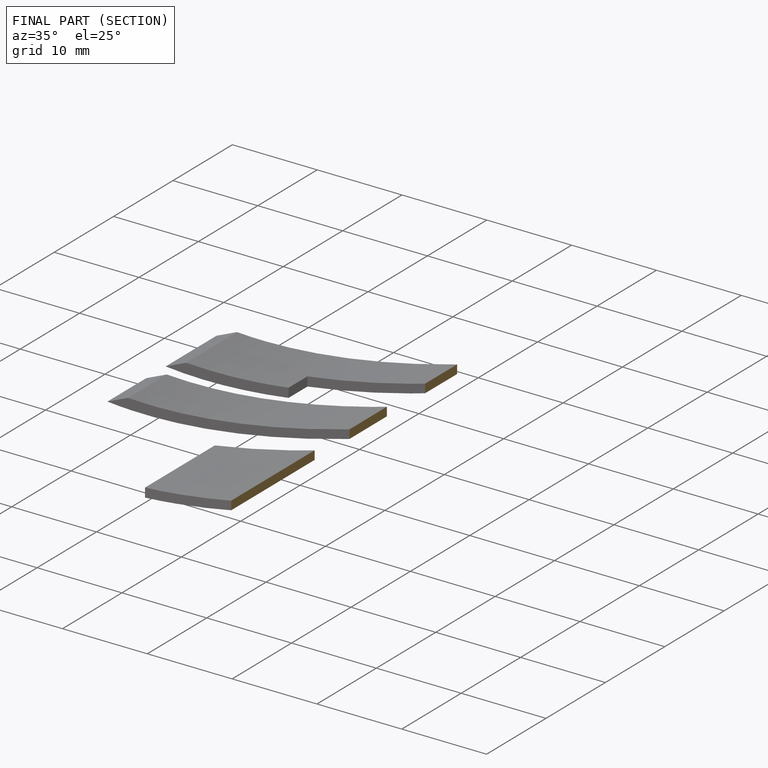
[diagram: finished part — half-section view (interior)]
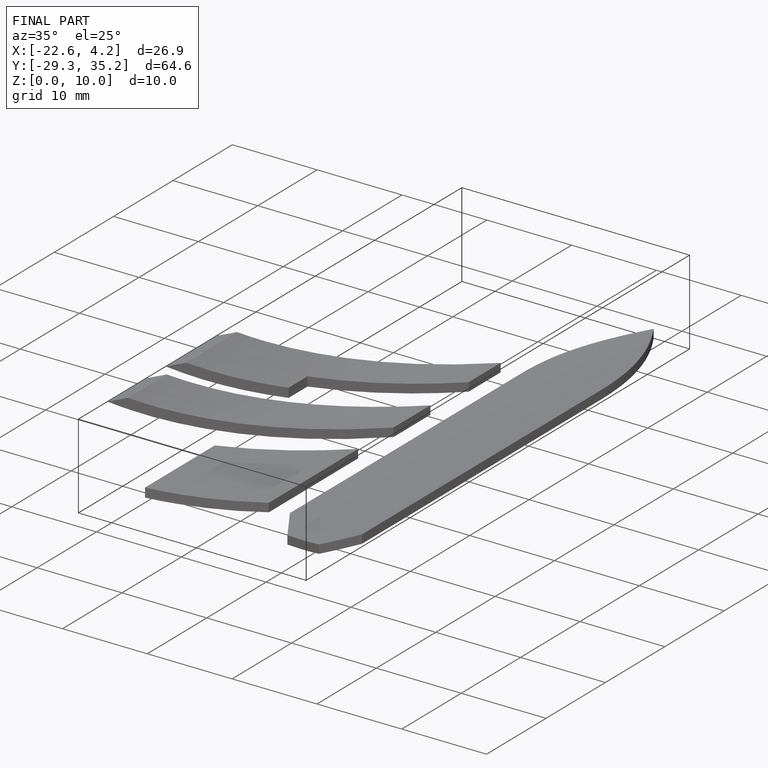
[diagram: finished part — iso view with bounding-box wireframe]
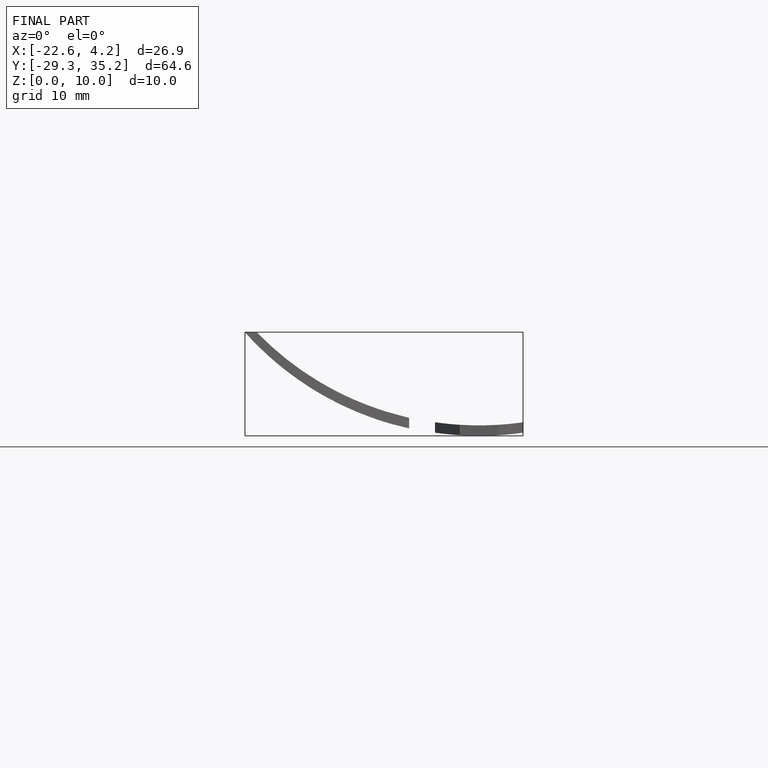
[diagram: finished part — front view with bounding-box wireframe]
